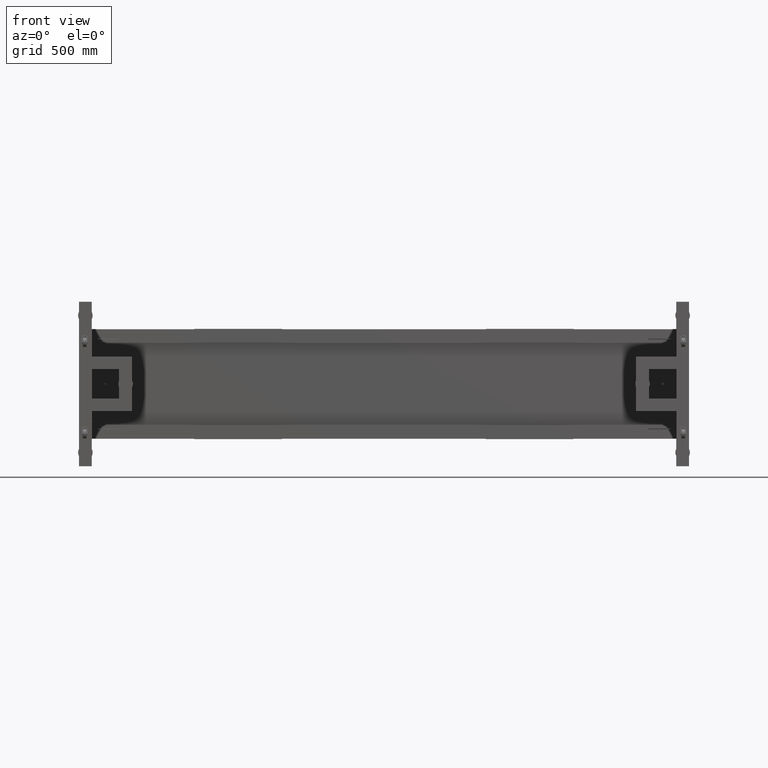
[diagram: clean part render]
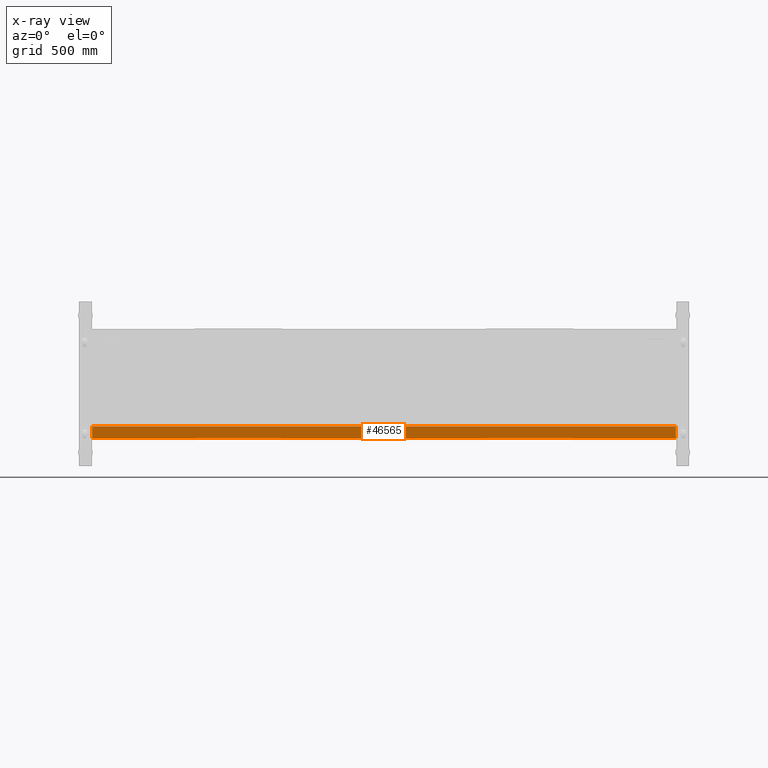
[diagram: x-ray — body ghosted, one internal face saturated and labeled with its STEP entity id]
A machine part, front view, then the same camera in x-ray: the body is ghosted and one INTERNAL B-rep face — a face not visible from any outside direction — is saturated and labeled: STEP entity #46565.
In plain terms, the highlighted planar face has unit normal (0, -1, -0).
Its self-contained STEP definition (entity closure, byte-faithful):
#359 = LINE ( 'NONE', #66399, #26449 ) ;
#1541 = EDGE_CURVE ( 'NONE', #25328, #21404, #36520, .T. ) ;
#2173 = VERTEX_POINT ( 'NONE', #58045 ) ;
#5383 = CARTESIAN_POINT ( 'NONE',  ( 1929.827512562814718, 554.4410804020134265, -232.4999999999999147 ) ) ;
#9494 = VECTOR ( 'NONE', #53706, 1000.000000000000000 ) ;
#10801 = DIRECTION ( 'NONE',  ( 0.000000000000000000, 2.999999999999999839E-15, -1.000000000000000000 ) ) ;
#11178 = ORIENTED_EDGE ( 'NONE', *, *, #55126, .T. ) ;
#14956 = EDGE_CURVE ( 'NONE', #70737, #21404, #64211, .T. ) ;
#21404 = VERTEX_POINT ( 'NONE', #78494 ) ;
#22725 = AXIS2_PLACEMENT_3D ( 'NONE', #5383, #37151, #61686 ) ;
#25328 = VERTEX_POINT ( 'NONE', #33927 ) ;
#26449 = VECTOR ( 'NONE', #49442, 1000.000000000000000 ) ;
#30308 = PLANE ( 'NONE',  #22725 ) ;
#33927 = CARTESIAN_POINT ( 'NONE',  ( -1266.172487437185964, 554.4410804020122896, -232.4999999999999147 ) ) ;
#33976 = CARTESIAN_POINT ( 'NONE',  ( 1929.827512562814718, 554.4410804020134265, -232.4999999999999147 ) ) ;
#35954 = FACE_OUTER_BOUND ( 'NONE', #48724, .T. ) ;
#36520 = LINE ( 'NONE', #53451, #46716 ) ;
#37151 = DIRECTION ( 'NONE',  ( 4.543257172554223644E-16, -1.000000000000000000, -2.999999999999999839E-15 ) ) ;
#40033 = LINE ( 'NONE', #33976, #9494 ) ;
#41858 = EDGE_CURVE ( 'NONE', #2173, #70737, #359, .T. ) ;
#43155 = CARTESIAN_POINT ( 'NONE',  ( 1929.827512562814718, 554.4410804020136538, -297.4999999999999432 ) ) ;
#45712 = ORIENTED_EDGE ( 'NONE', *, *, #41858, .F. ) ;
#46565 = ADVANCED_FACE ( 'NONE', ( #35954 ), #30308, .T. ) ;
#46716 = VECTOR ( 'NONE', #10801, 1000.000000000000000 ) ;
#47835 = VECTOR ( 'NONE', #69445, 1000.000000000000000 ) ;
#48724 = EDGE_LOOP ( 'NONE', ( #56294, #45712, #11178, #71217 ) ) ;
#49442 = DIRECTION ( 'NONE',  ( -1.362977151766267009E-30, 2.999999999999999839E-15, -1.000000000000000000 ) ) ;
#53451 = CARTESIAN_POINT ( 'NONE',  ( -1266.172487437185964, 554.4410804020122896, -232.4999999999999147 ) ) ;
#53706 = DIRECTION ( 'NONE',  ( -1.000000000000000000, -4.543257172554223644E-16, 0.000000000000000000 ) ) ;
#55126 = EDGE_CURVE ( 'NONE', #2173, #25328, #40033, .T. ) ;
#56294 = ORIENTED_EDGE ( 'NONE', *, *, #14956, .F. ) ;
#58045 = CARTESIAN_POINT ( 'NONE',  ( 1929.827512562814718, 554.4410804020134265, -232.4999999999999147 ) ) ;
#58950 = CARTESIAN_POINT ( 'NONE',  ( 1929.827512562814718, 554.4410804020136538, -297.4999999999999432 ) ) ;
#61686 = DIRECTION ( 'NONE',  ( -1.362977151766267009E-30, 2.999999999999999839E-15, -1.000000000000000000 ) ) ;
#64211 = LINE ( 'NONE', #58950, #47835 ) ;
#66399 = CARTESIAN_POINT ( 'NONE',  ( 1929.827512562814718, 554.4410804020134265, -232.4999999999999147 ) ) ;
#69445 = DIRECTION ( 'NONE',  ( -1.000000000000000000, -4.543257172554223644E-16, 0.000000000000000000 ) ) ;
#70737 = VERTEX_POINT ( 'NONE', #43155 ) ;
#71217 = ORIENTED_EDGE ( 'NONE', *, *, #1541, .T. ) ;
#78494 = CARTESIAN_POINT ( 'NONE',  ( -1266.172487437185964, 554.4410804020125170, -297.4999999999999432 ) ) ;